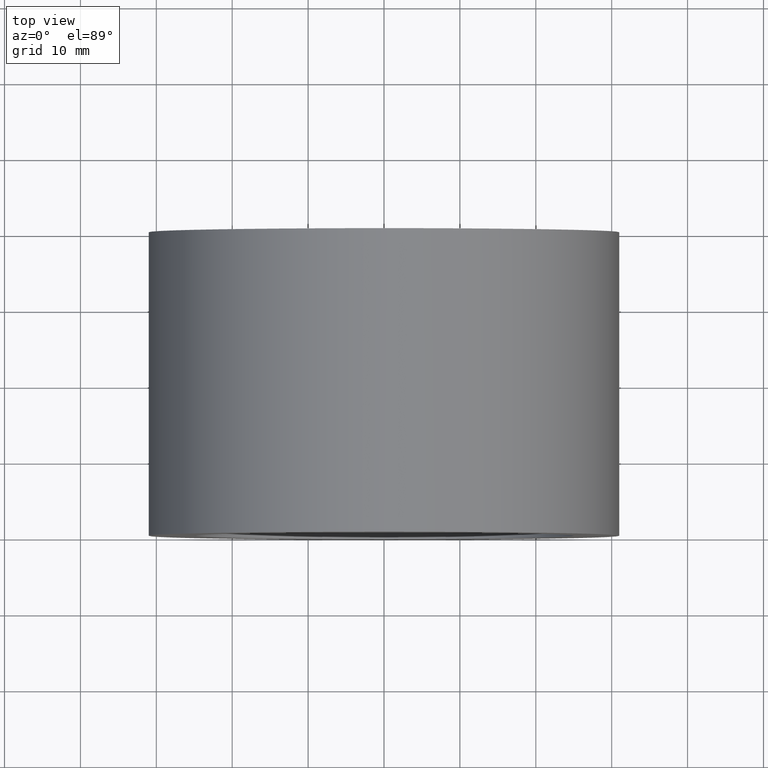
[diagram: clean part render]
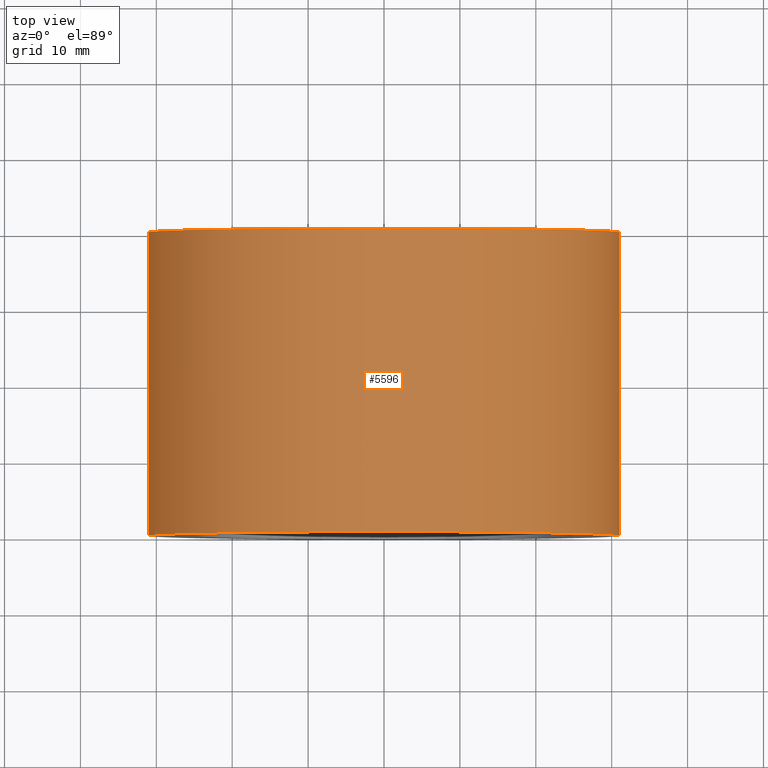
[diagram: same view with one face highlighted and labeled with its STEP entity id]
A machine part, top view. The second image highlights one B-rep face of the part: STEP entity #5596.
In plain terms, the highlighted cylindrical surface (partial cylindrical patch) has radius 31 mm, axis along (-0, 1, -0).
Its self-contained STEP definition (entity closure, byte-faithful):
#91 = DIRECTION ( 'NONE',  ( -1.000000000000000000, 0.000000000000000000, 0.000000000000000000 ) ) ;
#382 = ORIENTED_EDGE ( 'NONE', *, *, #8812, .F. ) ;
#858 = VERTEX_POINT ( 'NONE', #4689 ) ;
#1186 = CARTESIAN_POINT ( 'NONE',  ( 31.00000000000000355, 40.00000000000000000, 3.796405077356795904E-15 ) ) ;
#1329 = CARTESIAN_POINT ( 'NONE',  ( 0.000000000000000000, 0.000000000000000000, 0.000000000000000000 ) ) ;
#1486 = CARTESIAN_POINT ( 'NONE',  ( -31.00000000000001066, 40.00000000000000000, 0.000000000000000000 ) ) ;
#1640 = VERTEX_POINT ( 'NONE', #8630 ) ;
#1921 = CARTESIAN_POINT ( 'NONE',  ( -3.469446951953614189E-15, 40.00000000000000000, 0.000000000000000000 ) ) ;
#2061 = DIRECTION ( 'NONE',  ( -1.000000000000000000, 0.000000000000000000, 0.000000000000000000 ) ) ;
#2700 = FACE_OUTER_BOUND ( 'NONE', #8938, .T. ) ;
#2889 = AXIS2_PLACEMENT_3D ( 'NONE', #11153, #3244, #91 ) ;
#3244 = DIRECTION ( 'NONE',  ( -8.673617379884035472E-17, 1.000000000000000000, -0.000000000000000000 ) ) ;
#3312 = DIRECTION ( 'NONE',  ( -8.673617379884035472E-17, 1.000000000000000000, -0.000000000000000000 ) ) ;
#3358 = DIRECTION ( 'NONE',  ( -1.000000000000000000, -8.673617379884035472E-17, 0.000000000000000000 ) ) ;
#3422 = VERTEX_POINT ( 'NONE', #5171 ) ;
#3456 = DIRECTION ( 'NONE',  ( -8.673617379884035472E-17, 1.000000000000000000, -0.000000000000000000 ) ) ;
#3858 = AXIS2_PLACEMENT_3D ( 'NONE', #1921, #8805, #2061 ) ;
#4178 = ORIENTED_EDGE ( 'NONE', *, *, #10758, .F. ) ;
#4689 = CARTESIAN_POINT ( 'NONE',  ( 31.00000000000000000, 2.688821387764050602E-15, 3.796405077356795904E-15 ) ) ;
#5171 = CARTESIAN_POINT ( 'NONE',  ( 31.00000000000000711, 40.00000000000000000, 3.796405077356795904E-15 ) ) ;
#5596 = ADVANCED_FACE ( 'NONE', ( #2700 ), #6015, .T. ) ;
#5621 = VECTOR ( 'NONE', #9362, 1000.000000000000000 ) ;
#5830 = VERTEX_POINT ( 'NONE', #8815 ) ;
#6015 = CYLINDRICAL_SURFACE ( 'NONE', #2889, 31.00000000000000711 ) ;
#6385 = EDGE_CURVE ( 'NONE', #1640, #858, #11998, .T. ) ;
#7762 = ORIENTED_EDGE ( 'NONE', *, *, #6385, .T. ) ;
#8047 = EDGE_CURVE ( 'NONE', #858, #3422, #12145, .T. ) ;
#8087 = LINE ( 'NONE', #1486, #5621 ) ;
#8630 = CARTESIAN_POINT ( 'NONE',  ( -31.00000000000000000, -2.688821387764050996E-15, 0.000000000000000000 ) ) ;
#8805 = DIRECTION ( 'NONE',  ( -8.673617379884035472E-17, 1.000000000000000000, -0.000000000000000000 ) ) ;
#8812 = EDGE_CURVE ( 'NONE', #1640, #5830, #8087, .T. ) ;
#8815 = CARTESIAN_POINT ( 'NONE',  ( -31.00000000000001421, 40.00000000000000000, 0.000000000000000000 ) ) ;
#8938 = EDGE_LOOP ( 'NONE', ( #7762, #9083, #4178, #382 ) ) ;
#9083 = ORIENTED_EDGE ( 'NONE', *, *, #8047, .T. ) ;
#9362 = DIRECTION ( 'NONE',  ( -8.673617379884035472E-17, 1.000000000000000000, -0.000000000000000000 ) ) ;
#9611 = CIRCLE ( 'NONE', #3858, 31.00000000000001066 ) ;
#10758 = EDGE_CURVE ( 'NONE', #5830, #3422, #9611, .T. ) ;
#11153 = CARTESIAN_POINT ( 'NONE',  ( -3.469446951953614189E-15, 40.00000000000000000, 0.000000000000000000 ) ) ;
#11562 = AXIS2_PLACEMENT_3D ( 'NONE', #1329, #3312, #3358 ) ;
#11998 = CIRCLE ( 'NONE', #11562, 31.00000000000000000 ) ;
#12145 = LINE ( 'NONE', #1186, #13929 ) ;
#13929 = VECTOR ( 'NONE', #3456, 1000.000000000000000 ) ;